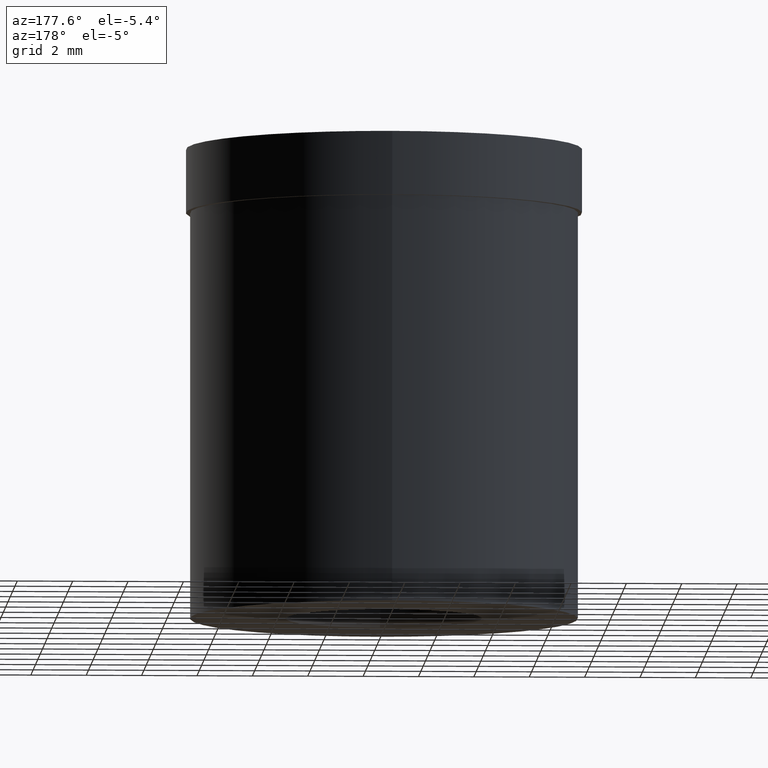
[diagram: clean part render]
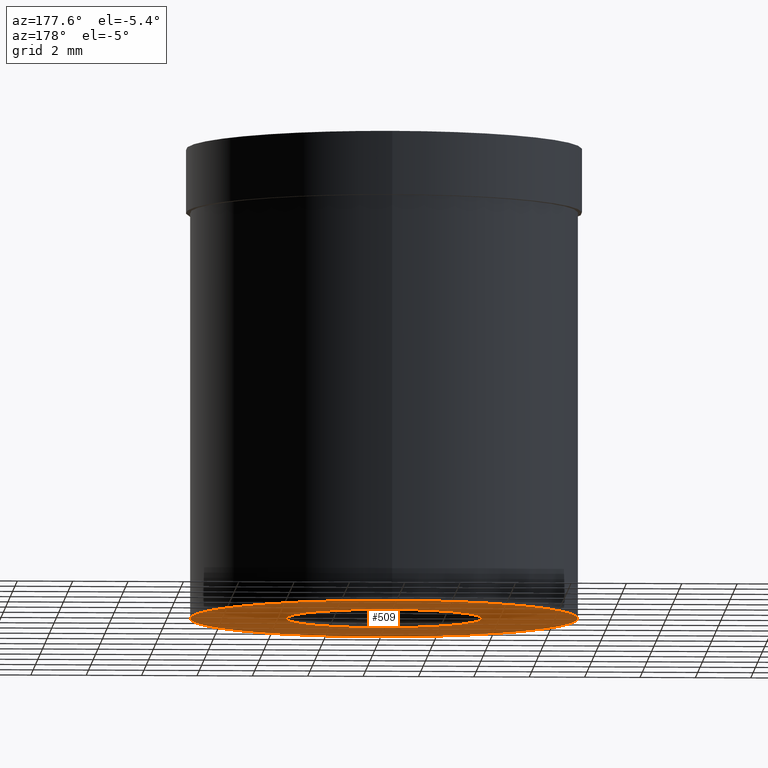
[diagram: same view with one face highlighted and labeled with its STEP entity id]
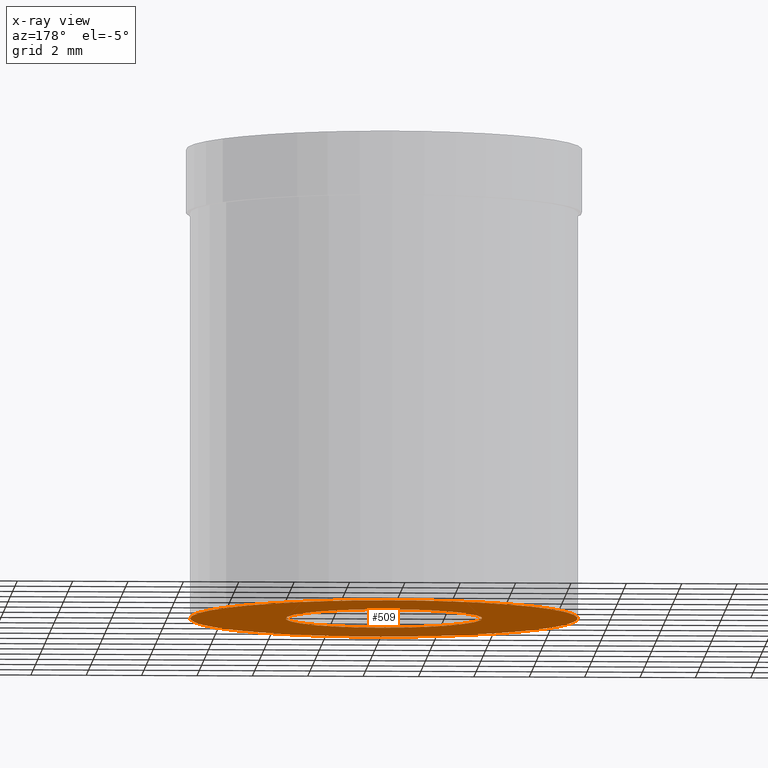
[diagram: x-ray of the same camera — body ghosted, the highlighted face saturated]
A machine part, auxiliary view. The second image highlights one B-rep face of the part: STEP entity #509.
The next image is the same camera in x-ray: the body ghosted, the highlighted face saturated — about 0% of this face is hidden behind the body in this view.
In plain terms, the highlighted planar face has unit normal (0, 0, 1).
Its self-contained STEP definition (entity closure, byte-faithful):
#124=CARTESIAN_POINT('',(0.E0,0.E0,-1.7E1));
#125=DIRECTION('',(0.E0,0.E0,1.E0));
#126=DIRECTION('',(0.E0,-1.E0,0.E0));
#127=AXIS2_PLACEMENT_3D('',#124,#125,#126);
#132=CARTESIAN_POINT('',(0.E0,0.E0,-1.7E1));
#133=DIRECTION('',(0.E0,0.E0,1.E0));
#134=DIRECTION('',(0.E0,1.E0,0.E0));
#135=AXIS2_PLACEMENT_3D('',#132,#133,#134);
#140=CARTESIAN_POINT('',(0.E0,0.E0,-1.7E1));
#141=DIRECTION('',(0.E0,0.E0,-1.E0));
#142=DIRECTION('',(0.E0,-1.E0,0.E0));
#143=AXIS2_PLACEMENT_3D('',#140,#141,#142);
#148=CARTESIAN_POINT('',(0.E0,0.E0,-1.7E1));
#149=DIRECTION('',(0.E0,0.E0,-1.E0));
#150=DIRECTION('',(0.E0,1.E0,0.E0));
#151=AXIS2_PLACEMENT_3D('',#148,#149,#150);
#344=CARTESIAN_POINT('',(0.E0,7.E0,-1.7E1));
#345=VERTEX_POINT('',#344);
#346=CARTESIAN_POINT('',(0.E0,-7.E0,-1.7E1));
#347=VERTEX_POINT('',#346);
#348=CARTESIAN_POINT('',(0.E0,-3.55E0,-1.7E1));
#349=CARTESIAN_POINT('',(0.E0,3.55E0,-1.7E1));
#350=VERTEX_POINT('',#348);
#351=VERTEX_POINT('',#349);
#494=CARTESIAN_POINT('',(0.E0,0.E0,-1.7E1));
#495=DIRECTION('',(0.E0,0.E0,1.E0));
#496=DIRECTION('',(0.E0,1.E0,0.E0));
#497=AXIS2_PLACEMENT_3D('',#494,#495,#496);
#498=PLANE('',#497);
#499=ORIENTED_EDGE('',*,*,#487,.T.);
#500=ORIENTED_EDGE('',*,*,#476,.T.);
#501=EDGE_LOOP('',(#499,#500));
#502=FACE_OUTER_BOUND('',#501,.F.);
#504=ORIENTED_EDGE('',*,*,#503,.T.);
#506=ORIENTED_EDGE('',*,*,#505,.T.);
#507=EDGE_LOOP('',(#504,#506));
#508=FACE_BOUND('',#507,.F.);
#128=CIRCLE('',#127,7.E0);
#136=CIRCLE('',#135,7.E0);
#144=CIRCLE('',#143,3.55E0);
#152=CIRCLE('',#151,3.55E0);
#476=EDGE_CURVE('',#345,#347,#136,.T.);
#487=EDGE_CURVE('',#347,#345,#128,.T.);
#503=EDGE_CURVE('',#350,#351,#144,.T.);
#505=EDGE_CURVE('',#351,#350,#152,.T.);
#509=ADVANCED_FACE('',(#502,#508),#498,.F.);